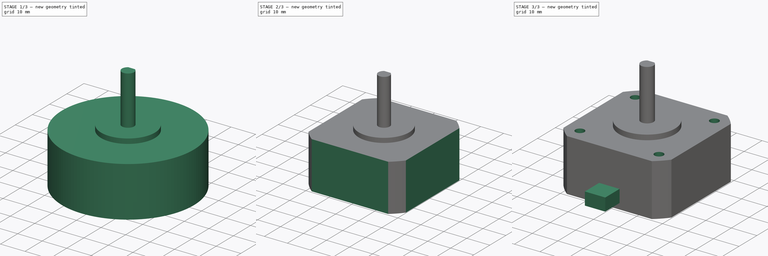
[diagram: build sequence overview — one tinted view per stage of 3, left to right]
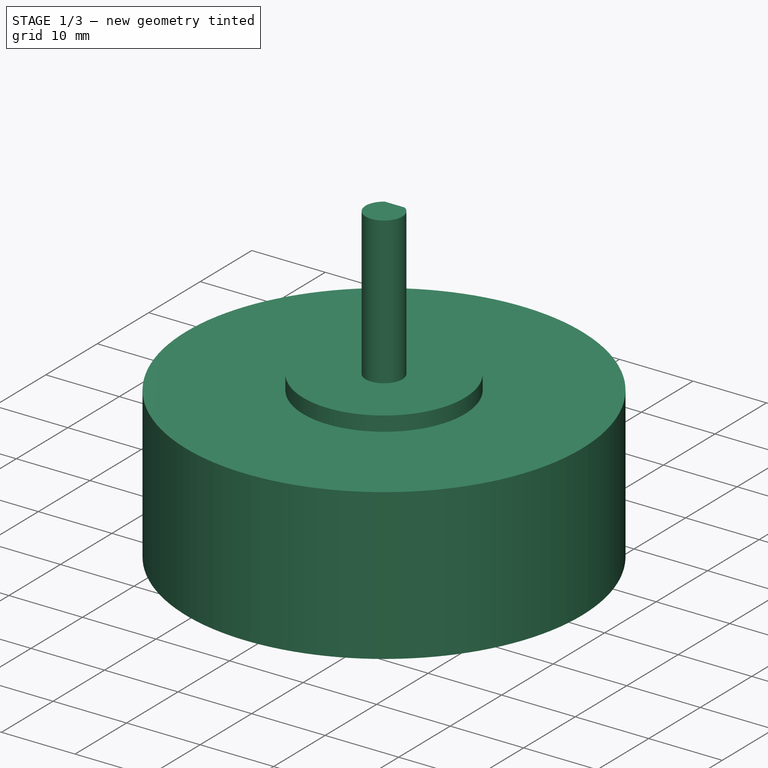
[diagram: stage 1 of 3 — iso view after this stage's code; geometry added in this stage tinted green]
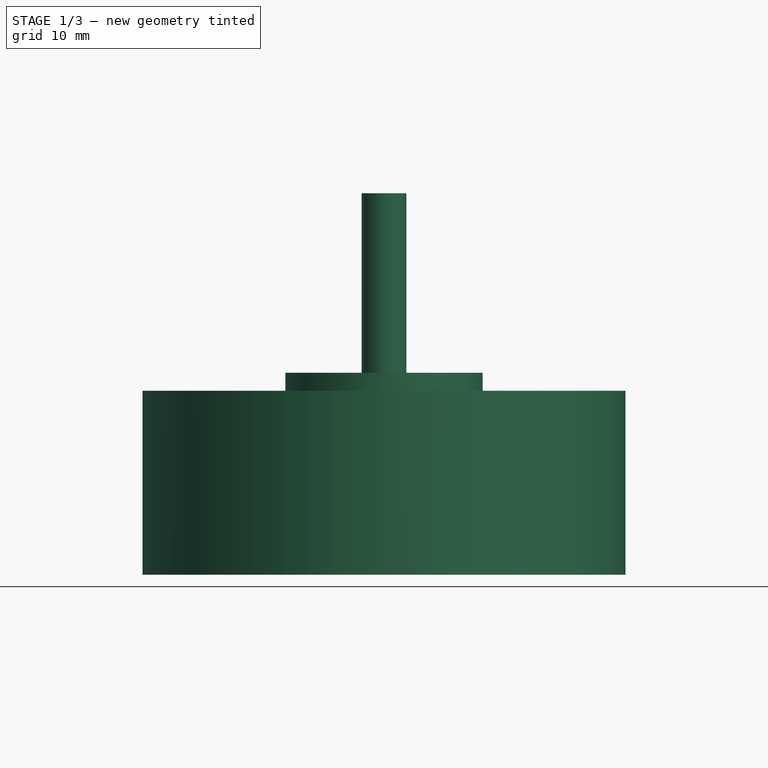
[diagram: stage 1 of 3 — front view after this stage's code; geometry added in this stage tinted green]
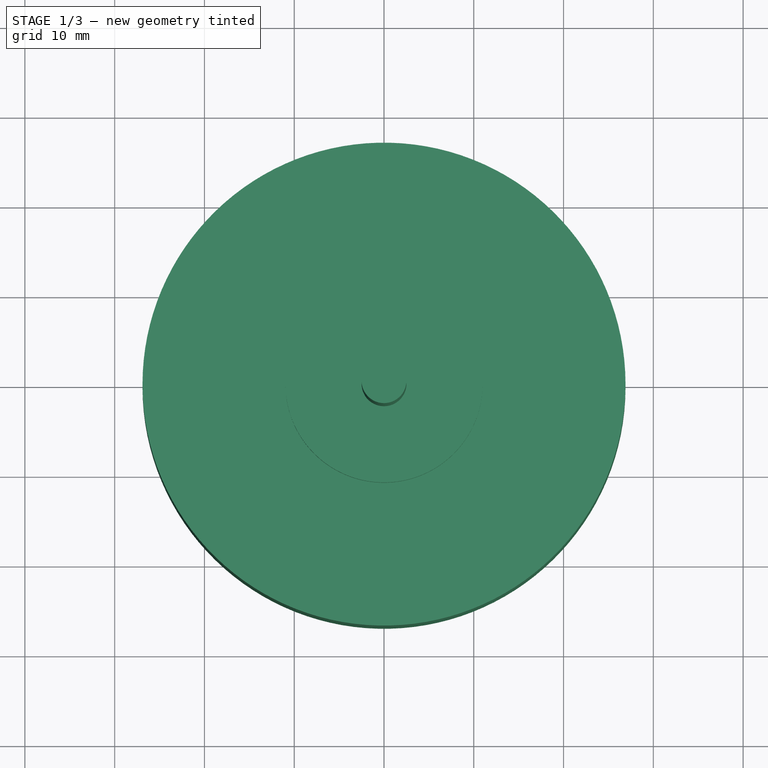
[diagram: stage 1 of 3 — top view after this stage's code; geometry added in this stage tinted green]
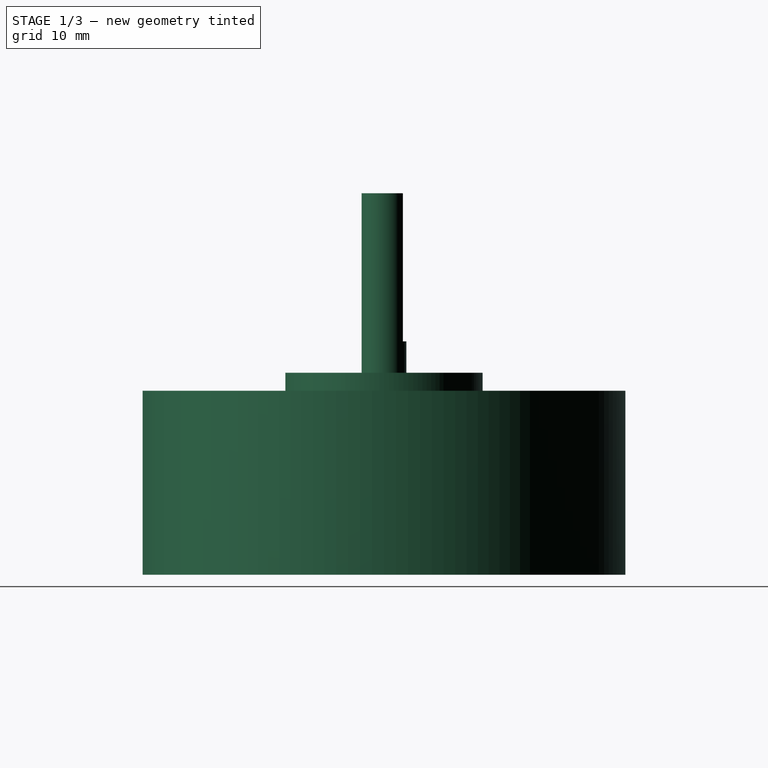
[diagram: stage 1 of 3 — right view after this stage's code; geometry added in this stage tinted green]
FCSTD DOCUMENT  (FreeCAD 0.19R)
Label: nema17HS08-1004S
License: All rights reserved
LicenseURL: http://en.wikipedia.org/wiki/All_rights_reserved
objects: Sketcher::SketchObject×5, PartDesign::Pocket×3, PartDesign::Revolution×1, PartDesign::Pad×1, PartDesign::Body×1, Image::ImagePlane×1
note: 16 computed .brp shape members not serialized (recipe doc carries the construction recipe); baked Part::Feature solids carry a one-line shape summary decoded from their .brp

FEATURE [Sketcher::SketchObject] Sketch  label="main body sketch"
  FullyConstrained = true
  MapMode = 5
  Placement = pos=(0,0,0) rot=(1,0,0;1.5708rad)
  Support = -> [XZ_Plane]
  expr: Constraints[16] = (22 - 0.05 / 2) / 2
  expr: Constraints[22] = (5 - 0.012 / 2) / 2
  sketch-geometry (8):
    g0: LineSegment StartX=0 StartY=0 StartZ=0 EndX=26.9 EndY=0 EndZ=0
    g1: LineSegment StartX=26.9 StartY=0 StartZ=0 EndX=26.9 EndY=20.5 EndZ=0
    g2: LineSegment StartX=26.9 StartY=20.5 StartZ=0 EndX=10.9875 EndY=20.5 EndZ=0
    g3: LineSegment StartX=10.9875 StartY=20.5 StartZ=0 EndX=10.9875 EndY=22.5 EndZ=0
    g4: LineSegment StartX=10.9875 StartY=22.5 StartZ=0 EndX=2.497 EndY=22.5 EndZ=0
    g5: LineSegment StartX=2.497 StartY=22.5 StartZ=0 EndX=2.497 EndY=42.5 EndZ=0
    g6: LineSegment StartX=2.497 StartY=42.5 StartZ=0 EndX=0 EndY=42.5 EndZ=0
    g7: LineSegment StartX=0 StartY=42.5 StartZ=0 EndX=0 EndY=0 EndZ=0
  constraints (23):
    c: Coincident(g-1,g0)
    c: PointOnObject(g0,g-1)
    c: Coincident(g0,g1)
    c: Vertical(g1)
    c: Coincident(g1,g2)
    c: Horizontal(g2)
    c: Coincident(g2,g3)
    c: Coincident(g3,g4)
    c: Horizontal(g4)
    c: Coincident(g4,g5)
    c: Vertical(g5)
    c: Coincident(g5,g6)
    c: Coincident(g6,g7)
    c: Coincident(g7,g0)
    c: Vertical(g7)
    c: DistanceX(g0,g0) = 26.9
    c: DistanceX(g0,g3) = 10.9875
    c: Vertical(g3)
    c: DistanceY(g3,g3) = 2
    c: DistanceY(g1,g1) = 20.5
    c: DistanceY(g5,g5) = 20
    c: Horizontal(g6)
    c: DistanceX(g6,g6) = 2.497
FEATURE [PartDesign::Revolution] Revolution  label="main body"
  Angle = 360
  Axis = (0,2e-16,1)
  Base = (0,0,0)
  Placement = pos=(0,0,0) rot=(1,0,0;1.5708rad)
  Profile = -> Sketch
  ReferenceAxis = -> Sketch [V_Axis]
  Refine = true
  Reversed = true
FEATURE [Sketcher::SketchObject] Sketch001  label="shaft cut sketch"
  AttachmentOffset = pos=(0,0,42.5) rot=(0,0,1;0rad)
  FullyConstrained = true
  MapMode = 5
  Placement = pos=(0,0,42.5) rot=(0,0,1;0rad)
  Support = -> [XY_Plane]
  expr: Constraints[9] = (4.996 - (4.996 - 4.2)) / 2
  sketch-geometry (4):
    g0: LineSegment StartX=-2.5 StartY=3.1 StartZ=0 EndX=2.5 EndY=3.1 EndZ=0
    g1: LineSegment StartX=2.5 StartY=3.1 StartZ=0 EndX=2.5 EndY=2.1 EndZ=0
    g2: LineSegment StartX=2.5 StartY=2.1 StartZ=0 EndX=-2.5 EndY=2.1 EndZ=0
    g3: LineSegment StartX=-2.5 StartY=2.1 StartZ=0 EndX=-2.5 EndY=3.1 EndZ=0
  constraints (11):
    c: Coincident(g0,g1)
    c: Coincident(g1,g2)
    c: Coincident(g2,g3)
    c: Coincident(g3,g0)
    c: Horizontal(g0)
    c: Vertical(g1)
    c: Vertical(g3)
    c: DistanceX(g0,g0) = 5
    c: Symmetric(g1,g2,g-2)
    c: DistanceY(g-1,g1) = 2.1
    c: DistanceY(g1,g1) = 1
FEATURE [PartDesign::Pocket] Pocket  label="shaft cut"
  BaseFeature = -> Revolution
  Length = 16.5
  Length2 = 100
  Placement = pos=(0,0,0) rot=(1,0,0;1.5708rad)
  Profile = -> Sketch001
  Refine = true
  Type = 0
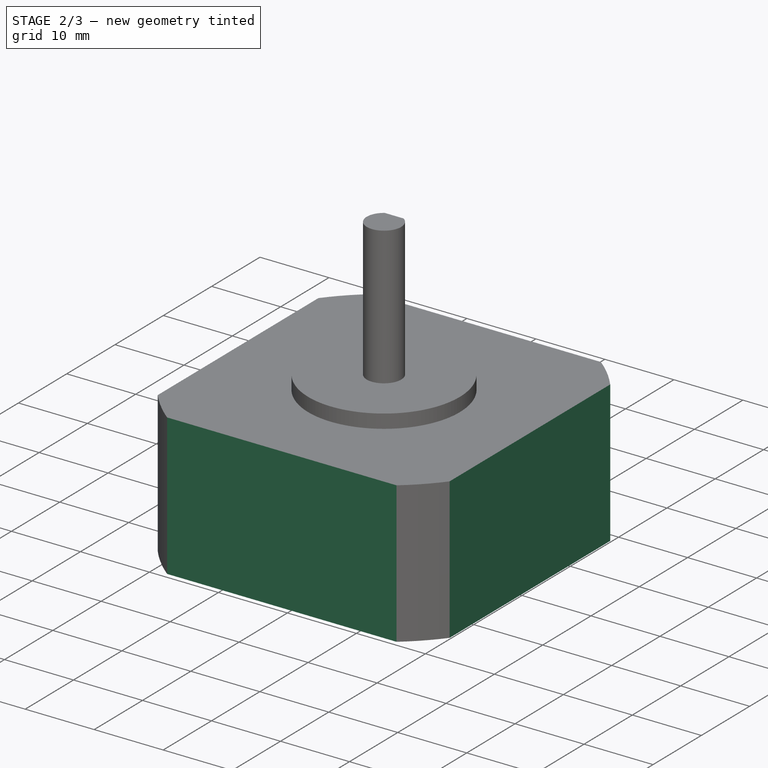
[diagram: stage 2 of 3 — iso view after this stage's code; geometry added in this stage tinted green]
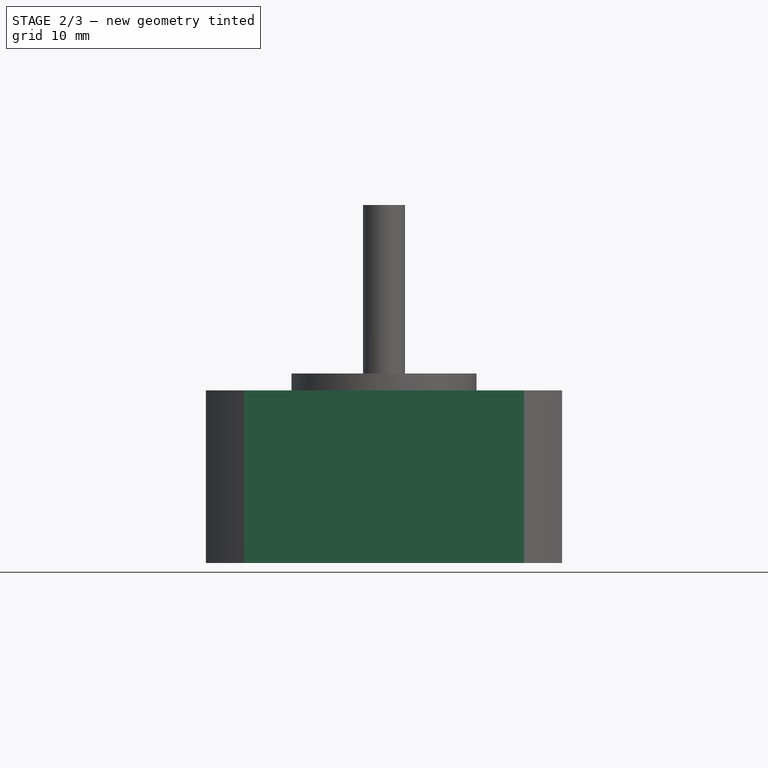
[diagram: stage 2 of 3 — front view after this stage's code; geometry added in this stage tinted green]
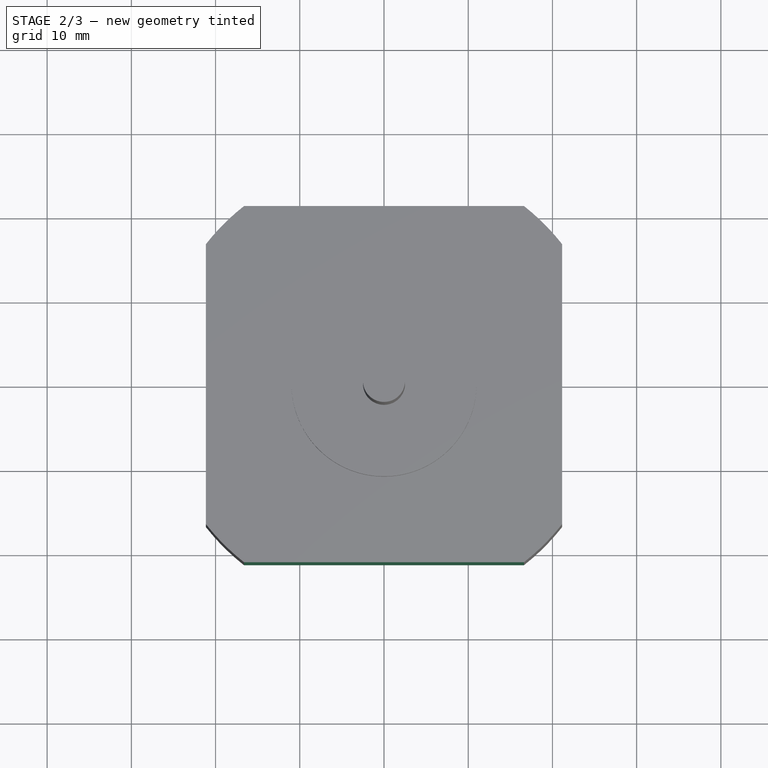
[diagram: stage 2 of 3 — top view after this stage's code; geometry added in this stage tinted green]
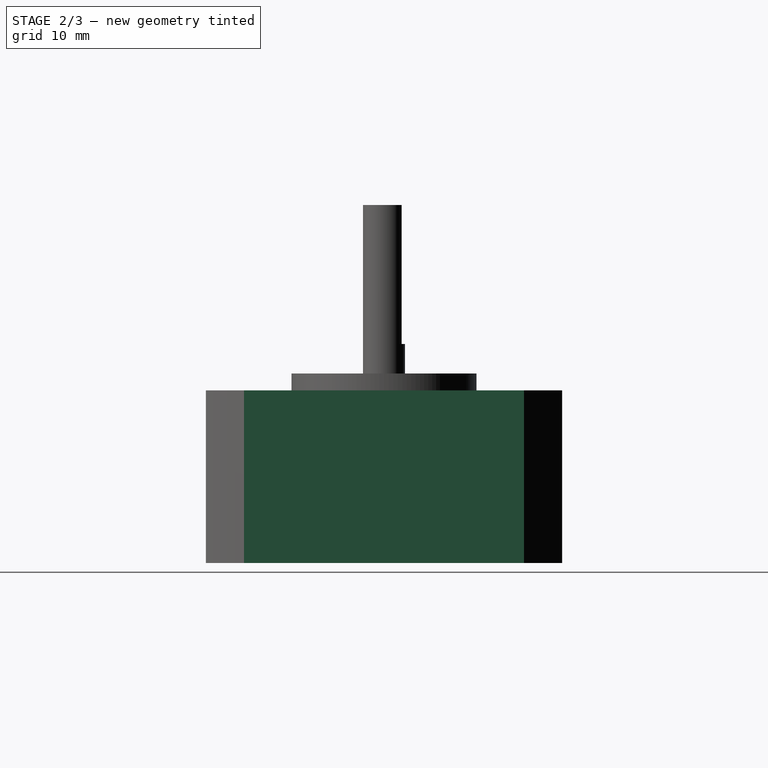
[diagram: stage 2 of 3 — right view after this stage's code; geometry added in this stage tinted green]
FEATURE [Sketcher::SketchObject] Sketch002  label="square cut sketch"
  FullyConstrained = true
  MapMode = 5
  Support = -> [XY_Plane]
  sketch-geometry (5):
    g0: LineSegment StartX=-21.15 StartY=21.15 StartZ=0 EndX=21.15 EndY=21.15 EndZ=0
    g1: LineSegment StartX=21.15 StartY=21.15 StartZ=0 EndX=21.15 EndY=-21.15 EndZ=0
    g2: LineSegment StartX=21.15 StartY=-21.15 StartZ=0 EndX=-21.15 EndY=-21.15 EndZ=0
    g3: LineSegment StartX=-21.15 StartY=-21.15 StartZ=0 EndX=-21.15 EndY=21.15 EndZ=0
    g4: Circle CenterX=0 CenterY=0 CenterZ=0 NormalX=0 NormalY=0 NormalZ=1 AngleXU=0 Radius=55
  constraints (12):
    c: Coincident(g0,g1)
    c: Coincident(g1,g2)
    c: Coincident(g2,g3)
    c: Coincident(g3,g0)
    c: Horizontal(g0)
    c: Vertical(g3)
    c: DistanceX(g2,g2) = 42.3
    c: DistanceY(g1,g1) = 42.3
    c: Symmetric(g0,g1,g-1)
    c: Symmetric(g1,g2,g-2)
    c: Coincident(g4,g-1)
    c: Radius(g4) = 55
FEATURE [PartDesign::Pocket] Pocket001  label="square cut"
  BaseFeature = -> Pocket
  Length = 0
  Length2 = 0
  Midplane = true
  Placement = pos=(0,0,0) rot=(1,0,0;1.5708rad)
  Profile = -> Sketch002
  Refine = true
  Type = 1
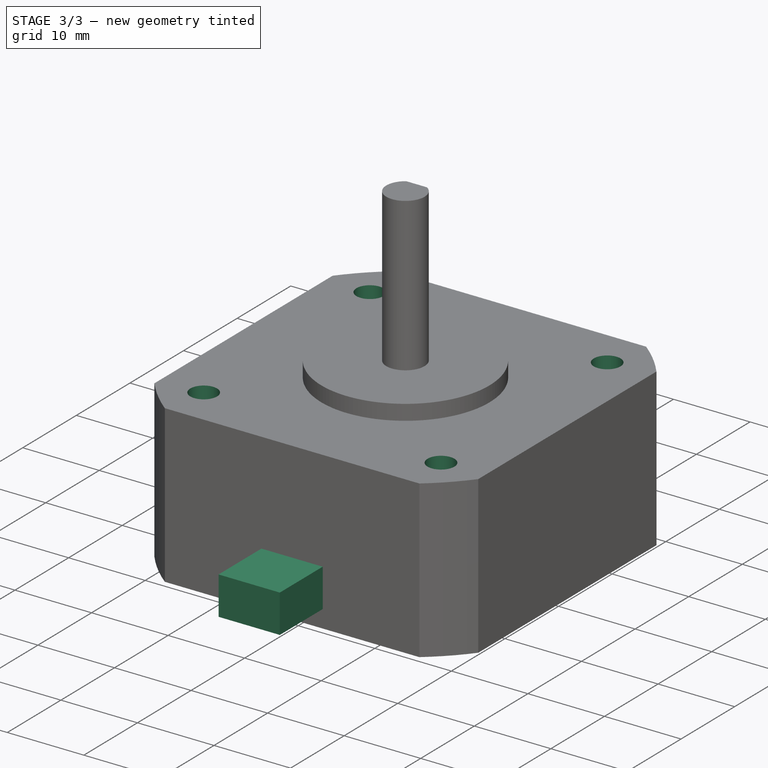
[diagram: stage 3 of 3 — iso view after this stage's code; geometry added in this stage tinted green]
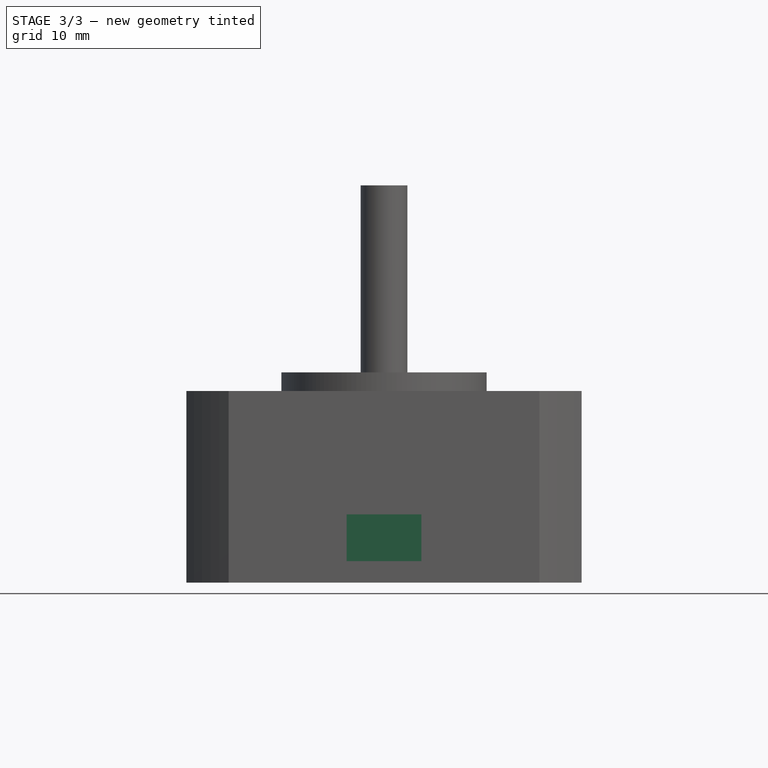
[diagram: stage 3 of 3 — front view after this stage's code; geometry added in this stage tinted green]
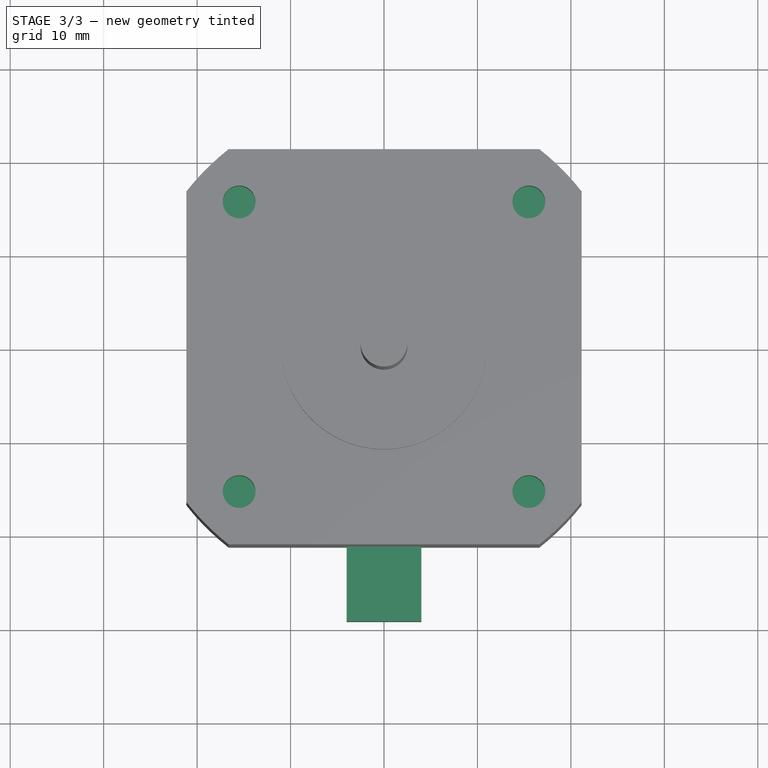
[diagram: stage 3 of 3 — top view after this stage's code; geometry added in this stage tinted green]
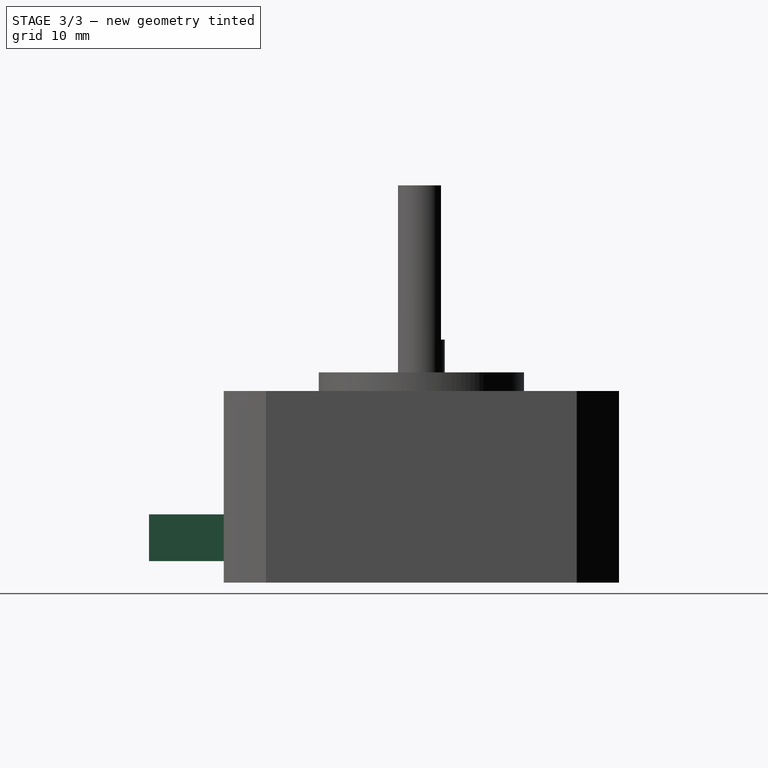
[diagram: stage 3 of 3 — right view after this stage's code; geometry added in this stage tinted green]
FEATURE [Sketcher::SketchObject] Sketch003  label="mount screw cut sketch"
  FullyConstrained = true
  MapMode = 5
  Placement = pos=(0,1.36e-14,20.5) rot=(0,0,1;3.14159rad)
  Support = -> [Pocket001]
  sketch-geometry (8):
    g0: LineSegment StartX=-15.5 StartY=15.5 StartZ=0 EndX=15.5 EndY=15.5 EndZ=0
    g1: LineSegment StartX=15.5 StartY=15.5 StartZ=0 EndX=15.5 EndY=-15.5 EndZ=0
    g2: LineSegment StartX=15.5 StartY=-15.5 StartZ=0 EndX=-15.5 EndY=-15.5 EndZ=0
    g3: LineSegment StartX=-15.5 StartY=-15.5 StartZ=0 EndX=-15.5 EndY=15.5 EndZ=0
    g4: Circle CenterX=-15.5 CenterY=15.5 CenterZ=0 NormalX=0 NormalY=0 NormalZ=1 AngleXU=0 Radius=1.75
    g5: Circle CenterX=15.5 CenterY=15.5 CenterZ=0 NormalX=0 NormalY=0 NormalZ=1 AngleXU=0 Radius=1.75
    g6: Circle CenterX=15.5 CenterY=-15.5 CenterZ=0 NormalX=0 NormalY=0 NormalZ=1 AngleXU=0 Radius=1.75
    g7: Circle CenterX=-15.5 CenterY=-15.5 CenterZ=0 NormalX=0 NormalY=0 NormalZ=1 AngleXU=0 Radius=1.75
  constraints (18):
    c: Coincident(g0,g1)
    c: Coincident(g1,g2)
    c: Coincident(g2,g3)
    c: Coincident(g3,g0)
    c: Horizontal(g2)
    c: Vertical(g3)
    c: DistanceX(g0,g0) = 31
    c: DistanceY(g1,g1) = 31
    c: Symmetric(g0,g0,g-2)
    c: Symmetric(g0,g1,g-1)
    c: Coincident(g4,g0)
    c: Coincident(g5,g0)
    c: Coincident(g6,g1)
    c: Coincident(g7,g2)
    c: Equal(g7,g4)
    c: Equal(g4,g5)
    c: Equal(g5,g6)
    c: Radius(g4) = 1.75
FEATURE [PartDesign::Pocket] Pocket002  label="mount screw cut"
  BaseFeature = -> Pocket001
  Length = 5
  Length2 = 100
  Placement = pos=(0,0,0) rot=(1,0,0;1.5708rad)
  Profile = -> Sketch003
  Refine = true
  Type = 0
FEATURE [Sketcher::SketchObject] Sketch004  label="cable channel sketch"
  AttachmentOffset = pos=(0,0,2.3) rot=(0,0,1;0rad)
  FullyConstrained = true
  MapMode = 5
  Placement = pos=(0,0,2.3) rot=(0,0,1;0rad)
  Support = -> [XY_Plane]
  sketch-geometry (4):
    g0: LineSegment StartX=-4 StartY=-21.15 StartZ=0 EndX=4 EndY=-21.15 EndZ=0
    g1: LineSegment StartX=4 StartY=-21.15 StartZ=0 EndX=4 EndY=-29.15 EndZ=0
    g2: LineSegment StartX=4 StartY=-29.15 StartZ=0 EndX=-4 EndY=-29.15 EndZ=0
    g3: LineSegment StartX=-4 StartY=-29.15 StartZ=0 EndX=-4 EndY=-21.15 EndZ=0
  constraints (11):
    c: Coincident(g0,g1)
    c: Coincident(g1,g2)
    c: Coincident(g2,g3)
    c: Coincident(g3,g0)
    c: Horizontal(g0)
    c: Vertical(g1)
    c: Vertical(g3)
    c: DistanceX(g2,g2) = 8
    c: DistanceY(g0,g-1) = 21.15
    c: DistanceY(g3,g3) = 8
    c: Symmetric(g1,g2,g-2)
FEATURE [PartDesign::Pad] Pad  label="cable channel"
  BaseFeature = -> Pocket002
  Direction = (1,1,1)
  Length = 5
  Length2 = 100
  Placement = pos=(0,0,0) rot=(1,0,0;1.5708rad)
  Profile = -> Sketch004
  Refine = true
  Type = 0
FEATURE [PartDesign::Body] Body  label="Nema Stepper Motor 17HS08-1004S"
  Group = -> [Sketch,Revolution,Sketch001,Pocket,Sketch002,Pocket001,Sketch003,Pocket002,Sketch004,Pad]
  Origin = -> Origin
  Tip = -> Pad
FEATURE [Image::ImagePlane] ImagePlane
  Placement = pos=(0,100,0) rot=(-1,0,0;4.71239rad)
  XSize = 198.5
  YSize = 140
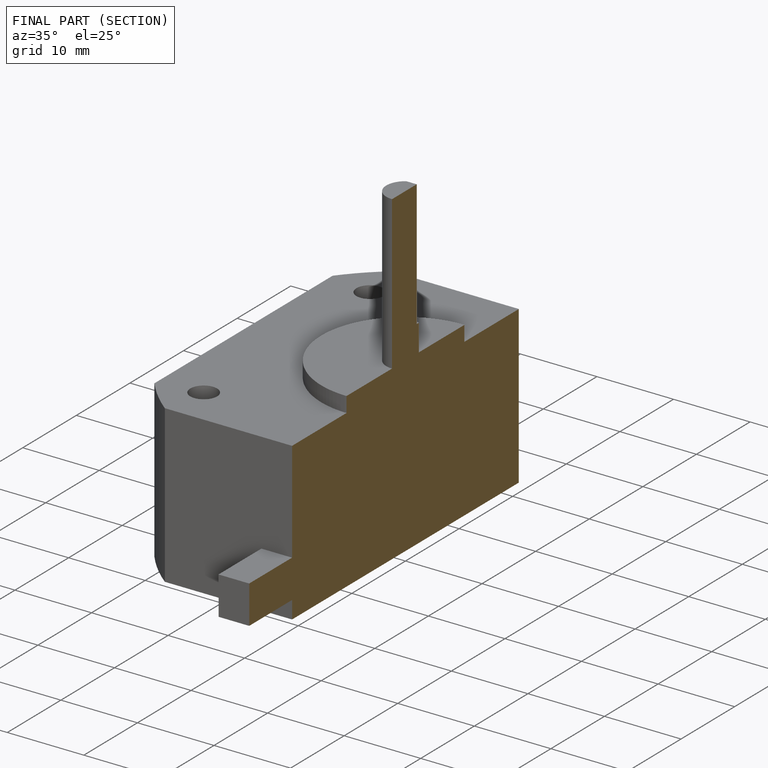
[diagram: finished part — half-section view (interior)]
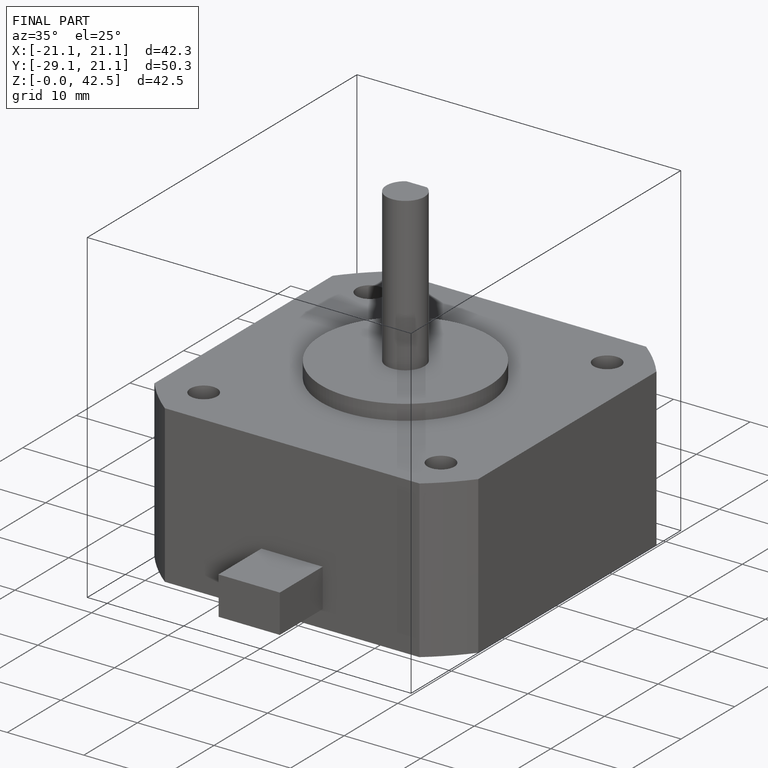
[diagram: finished part — iso view with bounding-box wireframe]
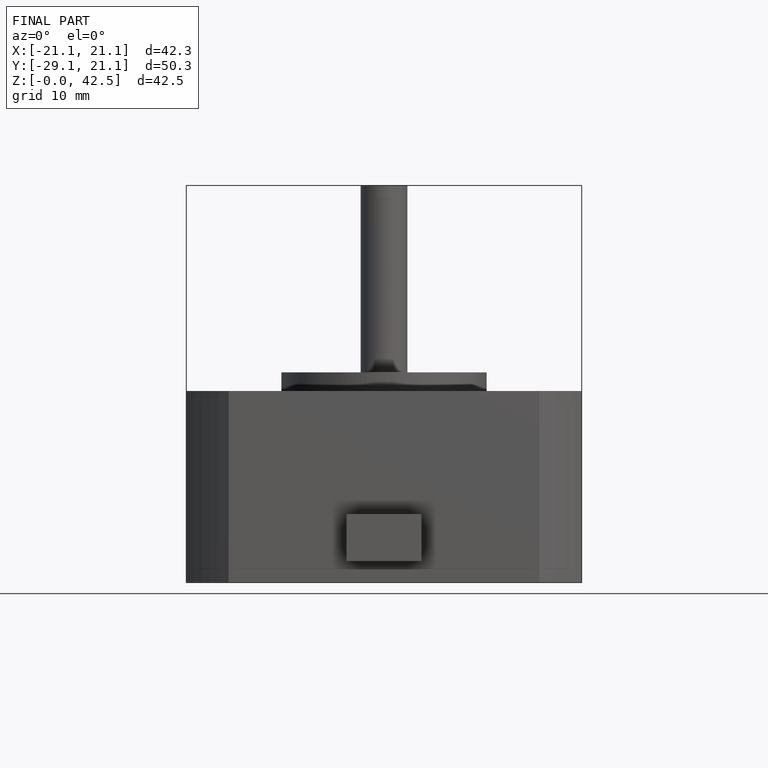
[diagram: finished part — front view with bounding-box wireframe]
